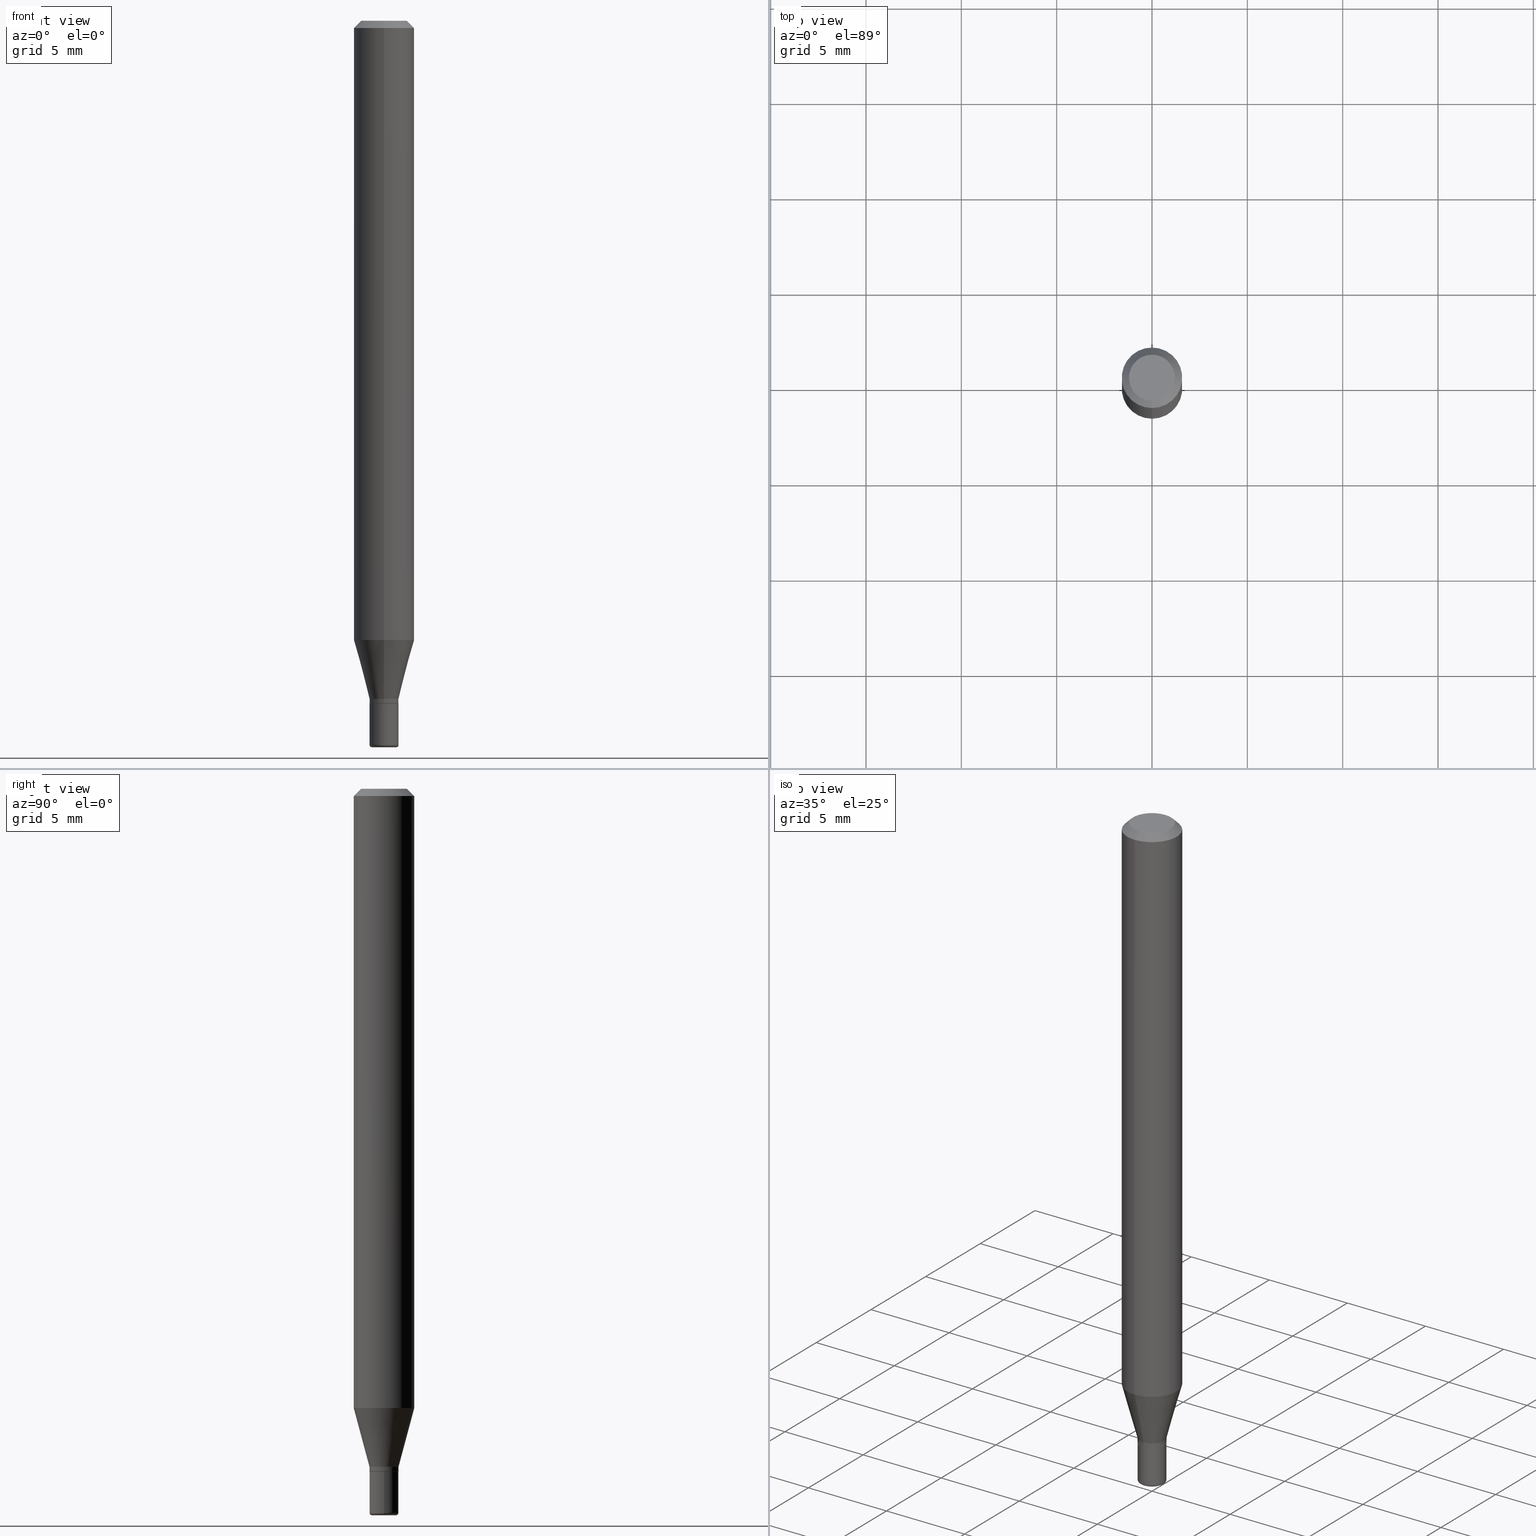
[diagram: canonical four-view strip — front | top / right | iso, engineering-drawing reading convention]
A machine part, canonical four-view strip (front | top / right | iso — engineering-drawing reading convention). The complete STEP part file that produces these views, byte-faithful:
ISO-10303-21;
HEADER;
FILE_DESCRIPTION (( 'STEP AP203' ),
    '1' );
FILE_NAME ('08533.STEP',
    '2024-02-29T19:43:01',
    ( '' ),
    ( '' ),
    'SwSTEP 2.0',
    'SolidWorks 2023',
    '' );
FILE_SCHEMA (( 'CONFIG_CONTROL_DESIGN' ));
ENDSEC;

DATA;
#1 = ORIENTED_EDGE ( 'NONE', *, *, #451, .F. ) ;
#2 = DIRECTION ( 'NONE',  ( 1.000000000000000000, -6.982962677686259611E-15, 4.883557194083110659E-29 ) ) ;
#3 = AXIS2_PLACEMENT_3D ( 'NONE', #428, #367, #492 ) ;
#4 = AXIS2_PLACEMENT_3D ( 'NONE', #474, #21, #155 ) ;
#5 = ADVANCED_FACE ( 'NONE', ( #287 ), #89, .T. ) ;
#6 = CARTESIAN_POINT ( 'NONE',  ( 3.127180537988016728E-29, -4.464387054030078647E-15, -1.278708348754012292 ) ) ;
#7 = CARTESIAN_POINT ( 'NONE',  ( 3.655975865246778562E-29, -5.219764601570502352E-15, -1.494999999999999662 ) ) ;
#8 = DIRECTION ( 'NONE',  ( 1.000000000000000000, -6.982962677686266711E-15, 4.876176775795935793E-29 ) ) ;
#9 = ORIENTED_EDGE ( 'NONE', *, *, #80, .T. ) ;
#10 = CIRCLE ( 'NONE', #477, 0.06250000000000000000 ) ;
#11 = EDGE_CURVE ( 'NONE', #268, #414, #246, .T. ) ;
#12 = EDGE_LOOP ( 'NONE', ( #171, #205 ) ) ;
#13 = DATE_TIME_ROLE ( 'classification_date' ) ;
#14 = VECTOR ( 'NONE', #488, 39.37007874015748143 ) ;
#15 = AXIS2_PLACEMENT_3D ( 'NONE', #32, #442, #362 ) ;
#16 = ADVANCED_FACE ( 'NONE', ( #209 ), #319, .T. ) ;
#17 = DIRECTION ( 'NONE',  ( -2.445577633895310376E-29, 3.491325491368088236E-15, 1.000000000000000000 ) ) ;
#18 = EDGE_LOOP ( 'NONE', ( #240, #394, #363, #406 ) ) ;
#19 = PERSON_AND_ORGANIZATION ( #228, #289 ) ;
#20 = CARTESIAN_POINT ( 'NONE',  ( -2.094888803305886127E-16, -0.03000000000000009256, 1.047397647410429799E-16 ) ) ;
#21 = DIRECTION ( 'NONE',  ( -2.445577633895310376E-29, 3.491325491368088236E-15, 1.000000000000000000 ) ) ;
#22 = AXIS2_PLACEMENT_3D ( 'NONE', #70, #157, #30 ) ;
#23 = LOCAL_TIME ( 14, 43, 1.000000000000000000, #291 ) ;
#24 = CARTESIAN_POINT ( 'NONE',  ( 0.02499999999999999792, -5.394338668512659809E-15, -1.495000000000000107 ) ) ;
#25 = EDGE_CURVE ( 'NONE', #323, #349, #244, .T. ) ;
#26 = LINE ( 'NONE', #162, #494 ) ;
#27 = DIRECTION ( 'NONE',  ( 1.000000000000000000, -6.982962677686255667E-15, 0.000000000000000000 ) ) ;
#28 = DIRECTION ( 'NONE',  ( -6.982962677686265133E-15, -1.000000000000000000, 3.491325491368088236E-15 ) ) ;
#29 = ORIENTED_EDGE ( 'NONE', *, *, #499, .F. ) ;
#30 = DIRECTION ( 'NONE',  ( -6.982962677686265922E-15, -1.000000000000000000, 3.491325491368088236E-15 ) ) ;
#31 = CONICAL_SURFACE ( 'NONE', #419, 0.03000000000000009950, 0.2617993877991495189 ) ;
#32 = CARTESIAN_POINT ( 'NONE',  ( 3.316907271900976589E-16, 0.04750000000000000749, -2.924926253430366371E-17 ) ) ;
#33 = ORIENTED_EDGE ( 'NONE', *, *, #408, .F. ) ;
#34 = ORIENTED_EDGE ( 'NONE', *, *, #251, .T. ) ;
#35 = CC_DESIGN_PERSON_AND_ORGANIZATION_ASSIGNMENT ( #146, #149, ( #404 ) ) ;
#36 = DIRECTION ( 'NONE',  ( -6.982962677686265922E-15, -1.000000000000000000, 0.000000000000000000 ) ) ;
#37 =( NAMED_UNIT ( * ) PLANE_ANGLE_UNIT ( ) SI_UNIT ( $, .RADIAN. ) );
#38 = DIRECTION ( 'NONE',  ( -2.445468806185136597E-29, 3.491481338843145583E-15, 1.000000000000000000 ) ) ;
#39 = CIRCLE ( 'NONE', #412, 0.02950000000000008865 ) ;
#40 = CIRCLE ( 'NONE', #47, 0.06250000000000000000 ) ;
#42 = ORIENTED_EDGE ( 'NONE', *, *, #238, .F. ) ;
#41 = PRODUCT_DEFINITION_FORMATION_WITH_SPECIFIED_SOURCE ( 'ANY', '', #329, .NOT_KNOWN. ) ;
#43 = CARTESIAN_POINT ( 'NONE',  ( 2.094888803306224597E-16, 0.02999999999999507921, -1.409999999999999920 ) ) ;
#44 = ADVANCED_FACE ( 'NONE', ( #487 ), #174, .F. ) ;
#45 = DIRECTION ( 'NONE',  ( -2.445577633895310376E-29, 3.491325491368088236E-15, 1.000000000000000000 ) ) ;
#46 = ORIENTED_EDGE ( 'NONE', *, *, #173, .T. ) ;
#47 = AXIS2_PLACEMENT_3D ( 'NONE', #191, #17, #348 ) ;
#48 = APPROVAL_DATE_TIME ( #373, #336 ) ;
#49 = CONICAL_SURFACE ( 'NONE', #122, 0.03000000000000009950, 0.2617993877991495189 ) ;
#50 = CARTESIAN_POINT ( 'NONE',  ( 2.096101070492646481E-16, 0.02949999999999516551, -1.409999999999999920 ) ) ;
#51 = AXIS2_PLACEMENT_3D ( 'NONE', #24, #54, #427 ) ;
#52 = DIRECTION ( 'NONE',  ( 1.000000000000000000, -6.982962677686265922E-15, 4.876176775795935793E-29 ) ) ;
#53 = APPROVAL_STATUS ( 'not_yet_approved' ) ;
#54 = DIRECTION ( 'NONE',  ( -6.982962677686266711E-15, -1.000000000000000000, 3.491481338843145583E-15 ) ) ;
#55 = CALENDAR_DATE ( 2024, 29, 2 ) ;
#56 = CARTESIAN_POINT ( 'NONE',  ( -0.02499999999999999792, -5.033094052583581751E-15, -1.500000000000000444 ) ) ;
#57 = ORIENTED_EDGE ( 'NONE', *, *, #262, .T. ) ;
#58 = DIRECTION ( 'NONE',  ( 6.982962677686265922E-15, 1.000000000000000000, -3.483106191921935554E-15 ) ) ;
#59 = AXIS2_PLACEMENT_3D ( 'NONE', #133, #282, #86 ) ;
#60 = EDGE_CURVE ( 'NONE', #508, #349, #276, .T. ) ;
#61 = CIRCLE ( 'NONE', #90, 0.02499999999999999792 ) ;
#62 = EDGE_CURVE ( 'NONE', #78, #166, #377, .T. ) ;
#63 = FACE_OUTER_BOUND ( 'NONE', #18, .T. ) ;
#64 = DIRECTION ( 'NONE',  ( -2.445577633895310376E-29, 3.491325491368088236E-15, 1.000000000000000000 ) ) ;
#65 = EDGE_LOOP ( 'NONE', ( #212, #429, #76, #164 ) ) ;
#66 = ADVANCED_FACE ( 'NONE', ( #452 ), #82, .F. ) ;
#67 = FACE_OUTER_BOUND ( 'NONE', #517, .T. ) ;
#68 = DIRECTION ( 'NONE',  ( -2.445468806185136597E-29, 3.491481338843145583E-15, 1.000000000000000000 ) ) ;
#69 = EDGE_LOOP ( 'NONE', ( #199, #46, #249, #1 ) ) ;
#70 = CARTESIAN_POINT ( 'NONE',  ( 0.000000000000000000, 0.000000000000000000, 0.000000000000000000 ) ) ;
#71 = FACE_OUTER_BOUND ( 'NONE', #258, .T. ) ;
#72 = ORIENTED_EDGE ( 'NONE', *, *, #326, .F. ) ;
#73 = AXIS2_PLACEMENT_3D ( 'NONE', #243, #120, #446 ) ;
#74 = APPROVAL_PERSON_ORGANIZATION ( #467, #336, #175 ) ;
#75 = DIRECTION ( 'NONE',  ( -2.445577633895310376E-29, 3.491325491368088236E-15, 1.000000000000000000 ) ) ;
#76 = ORIENTED_EDGE ( 'NONE', *, *, #408, .T. ) ;
#77 = DIRECTION ( 'NONE',  ( -2.445468806185136877E-29, 3.491481338843145188E-15, 1.000000000000000000 ) ) ;
#78 = VERTEX_POINT ( 'NONE', #210 ) ;
#79 = CARTESIAN_POINT ( 'NONE',  ( 0.000000000000000000, 0.000000000000000000, 0.000000000000000000 ) ) ;
#80 = EDGE_CURVE ( 'NONE', #480, #493, #344, .T. ) ;
#81 = ORIENTED_EDGE ( 'NONE', *, *, #178, .T. ) ;
#82 = PLANE ( 'NONE',  #296 ) ;
#83 = TOROIDAL_SURFACE ( 'NONE', #151, 0.02499999999999999792, 0.005000000000000179648 ) ;
#84 = VERTEX_POINT ( 'NONE', #98 ) ;
#85 = ORIENTED_EDGE ( 'NONE', *, *, #101, .T. ) ;
#86 = DIRECTION ( 'NONE',  ( 1.000000000000000000, -6.982962677686268288E-15, 0.000000000000000000 ) ) ;
#87 = ORIENTED_EDGE ( 'NONE', *, *, #468, .T. ) ;
#88 = EDGE_LOOP ( 'NONE', ( #108, #57, #136, #29 ) ) ;
#89 = CYLINDRICAL_SURFACE ( 'NONE', #353, 0.03000000000000008910 ) ;
#90 = AXIS2_PLACEMENT_3D ( 'NONE', #265, #68, #235 ) ;
#91 = APPROVAL_STATUS ( 'not_yet_approved' ) ;
#92 = CARTESIAN_POINT ( 'NONE',  ( 0.000000000000000000, 0.000000000000000000, 0.000000000000000000 ) ) ;
#93 = DATE_AND_TIME ( #382, #514 ) ;
#94 = AXIS2_PLACEMENT_3D ( 'NONE', #43, #410, #126 ) ;
#95 = VECTOR ( 'NONE', #77, 39.37007874015748143 ) ;
#96 = DIRECTION ( 'NONE',  ( -6.982962677686265922E-15, -1.000000000000000000, 0.000000000000000000 ) ) ;
#97 =( GEOMETRIC_REPRESENTATION_CONTEXT ( 3 ) GLOBAL_UNCERTAINTY_ASSIGNED_CONTEXT ( ( #401 ) ) GLOBAL_UNIT_ASSIGNED_CONTEXT ( ( #241, #37, #516 ) ) REPRESENTATION_CONTEXT ( 'NONE', 'WORKASPACE' ) );
#98 = CARTESIAN_POINT ( 'NONE',  ( 3.840629472727447874E-16, 0.04750000000000000749, 1.073394357713768884E-16 ) ) ;
#99 = MECHANICAL_CONTEXT ( 'NONE', #328, 'mechanical' ) ;
#100 = FACE_OUTER_BOUND ( 'NONE', #208, .T. ) ;
#101 = EDGE_CURVE ( 'NONE', #313, #176, #119, .T. ) ;
#102 = FACE_OUTER_BOUND ( 'NONE', #245, .T. ) ;
#103 = EDGE_LOOP ( 'NONE', ( #359, #335, #121, #72 ) ) ;
#104 = ADVANCED_FACE ( 'NONE', ( #470 ), #340, .F. ) ;
#105 = ORIENTED_EDGE ( 'NONE', *, *, #11, .T. ) ;
#106 = CARTESIAN_POINT ( 'NONE',  ( 3.668366450842892977E-31, -5.236988237052028199E-17, -0.01499999999999970281 ) ) ;
#107 = AXIS2_PLACEMENT_3D ( 'NONE', #237, #163, #407 ) ;
#108 = ORIENTED_EDGE ( 'NONE', *, *, #130, .T. ) ;
#109 = CC_DESIGN_APPROVAL ( #388, ( #305 ) ) ;
#110 = CARTESIAN_POINT ( 'NONE',  ( 0.000000000000000000, 0.000000000000000000, 0.000000000000000000 ) ) ;
#111 = CARTESIAN_POINT ( 'NONE',  ( 4.364351673553919652E-16, 0.06249999999999995143, -0.01499999999999992138 ) ) ;
#112 = DIRECTION ( 'NONE',  ( -6.982962677686265922E-15, -1.000000000000000000, 0.000000000000000000 ) ) ;
#113 = ORIENTED_EDGE ( 'NONE', *, *, #62, .F. ) ;
#114 = EDGE_CURVE ( 'NONE', #236, #78, #458, .T. ) ;
#115 = CYLINDRICAL_SURFACE ( 'NONE', #22, 0.06250000000000000000 ) ;
#116 = CARTESIAN_POINT ( 'NONE',  ( 3.448111016721042669E-29, -4.922988687768835701E-15, -1.409999999999999920 ) ) ;
#117 = EDGE_LOOP ( 'NONE', ( #128, #34, #271, #232 ) ) ;
#118 = DIRECTION ( 'NONE',  ( -6.982962677686265922E-15, -1.000000000000000000, 0.000000000000000000 ) ) ;
#119 = CIRCLE ( 'NONE', #250, 0.03000000000000008910 ) ;
#120 = DIRECTION ( 'NONE',  ( -2.445577633895310376E-29, 3.491325491368088236E-15, 1.000000000000000000 ) ) ;
#121 = ORIENTED_EDGE ( 'NONE', *, *, #153, .F. ) ;
#122 = AXIS2_PLACEMENT_3D ( 'NONE', #464, #225, #229 ) ;
#123 = DIRECTION ( 'NONE',  ( 1.000000000000000000, -6.982962677686268288E-15, 0.000000000000000000 ) ) ;
#124 = EDGE_CURVE ( 'NONE', #495, #457, #288, .T. ) ;
#125 = EDGE_LOOP ( 'NONE', ( #87, #472 ) ) ;
#126 = DIRECTION ( 'NONE',  ( -1.000000000000000000, 6.982962677686265922E-15, -4.876176775795935793E-29 ) ) ;
#127 = EDGE_CURVE ( 'NONE', #414, #349, #141, .T. ) ;
#128 = ORIENTED_EDGE ( 'NONE', *, *, #217, .F. ) ;
#129 = DIRECTION ( 'NONE',  ( 1.000000000000000000, -6.982962677686259611E-15, 0.000000000000000000 ) ) ;
#130 = EDGE_CURVE ( 'NONE', #493, #480, #39, .T. ) ;
#131 = ORIENTED_EDGE ( 'NONE', *, *, #80, .F. ) ;
#132 = AXIS2_PLACEMENT_3D ( 'NONE', #110, #197, #355 ) ;
#133 = CARTESIAN_POINT ( 'NONE',  ( 3.448111016721042669E-29, -4.922988687768835701E-15, -1.409999999999999920 ) ) ;
#134 = APPROVAL_PERSON_ORGANIZATION ( #142, #399, #426 ) ;
#135 = SHAPE_DEFINITION_REPRESENTATION ( #215, #140 ) ;
#136 = ORIENTED_EDGE ( 'NONE', *, *, #101, .F. ) ;
#137 = ORIENTED_EDGE ( 'NONE', *, *, #127, .T. ) ;
#138 = COORDINATED_UNIVERSAL_TIME_OFFSET ( 5, 0, .BEHIND. ) ;
#139 = CC_DESIGN_PERSON_AND_ORGANIZATION_ASSIGNMENT ( #497, #501, ( #329 ) ) ;
#140 = ADVANCED_BREP_SHAPE_REPRESENTATION ( '08533', ( #334, #179, #299 ), #97 ) ;
#141 = CIRCLE ( 'NONE', #432, 0.06250000000000000000 ) ;
#142 = PERSON_AND_ORGANIZATION ( #228, #289 ) ;
#143 = CIRCLE ( 'NONE', #354, 0.03000000000000017583 ) ;
#144 = APPROVAL_ROLE ( '' ) ;
#145 = ADVANCED_FACE ( 'NONE', ( #67 ), #180, .T. ) ;
#146 = PERSON_AND_ORGANIZATION ( #228, #289 ) ;
#147 = DIRECTION ( 'NONE',  ( -2.445577633895310376E-29, 3.491325491368088236E-15, 1.000000000000000000 ) ) ;
#148 = DIRECTION ( 'NONE',  ( -2.445577633895310376E-29, 3.491325491368088236E-15, 1.000000000000000000 ) ) ;
#149 = PERSON_AND_ORGANIZATION_ROLE ( 'classification_officer' ) ;
#150 = AXIS2_PLACEMENT_3D ( 'NONE', #7, #172, #129 ) ;
#151 = AXIS2_PLACEMENT_3D ( 'NONE', #364, #361, #2 ) ;
#152 = DIRECTION ( 'NONE',  ( -1.807323732225324617E-15, -0.2588190451025174088, 0.9659258262890690894 ) ) ;
#153 = EDGE_CURVE ( 'NONE', #166, #78, #143, .T. ) ;
#154 = CARTESIAN_POINT ( 'NONE',  ( -2.094888803305543958E-16, -0.03000000000000498449, -1.400000000000000355 ) ) ;
#155 = DIRECTION ( 'NONE',  ( -6.982962677686265922E-15, -1.000000000000000000, 3.491325491368088630E-15 ) ) ;
#156 = ORIENTED_EDGE ( 'NONE', *, *, #130, .F. ) ;
#157 = DIRECTION ( 'NONE',  ( -2.445577633895310376E-29, 3.491325491368088236E-15, 1.000000000000000000 ) ) ;
#158 = FACE_OUTER_BOUND ( 'NONE', #440, .T. ) ;
#159 = CONICAL_SURFACE ( 'NONE', #338, 0.02950000000000008865, 0.7853981633975507526 ) ;
#160 = ORIENTED_EDGE ( 'NONE', *, *, #451, .T. ) ;
#161 = CC_DESIGN_SECURITY_CLASSIFICATION ( #404, ( #41 ) ) ;
#162 = CARTESIAN_POINT ( 'NONE',  ( -0.03000000000000008910, 2.131628207280306888E-16, -1.475680527076476261E-30 ) ) ;
#163 = DIRECTION ( 'NONE',  ( -2.445577633895310376E-29, 3.491325491368088236E-15, 1.000000000000000000 ) ) ;
#164 = ORIENTED_EDGE ( 'NONE', *, *, #450, .F. ) ;
#165 = DIRECTION ( 'NONE',  ( -4.937700262165053702E-15, -0.7071067811866175168, 0.7071067811864775177 ) ) ;
#166 = VERTEX_POINT ( 'NONE', #478 ) ;
#167 = DIRECTION ( 'NONE',  ( -2.445577633895310376E-29, 3.491325491368088236E-15, 1.000000000000000000 ) ) ;
#168 = ADVANCED_FACE ( 'NONE', ( #63 ), #115, .T. ) ;
#169 = DIRECTION ( 'NONE',  ( -6.982962677686265922E-15, -1.000000000000000000, 4.370956789862821150E-15 ) ) ;
#170 = ADVANCED_FACE ( 'NONE', ( #392 ), #396, .T. ) ;
#171 = ORIENTED_EDGE ( 'NONE', *, *, #204, .T. ) ;
#172 = DIRECTION ( 'NONE',  ( -2.445468806185136597E-29, 3.491481338843145583E-15, 1.000000000000000000 ) ) ;
#173 = EDGE_CURVE ( 'NONE', #78, #495, #26, .T. ) ;
#174 = PLANE ( 'NONE',  #94 ) ;
#175 = APPROVAL_ROLE ( '' ) ;
#176 = VERTEX_POINT ( 'NONE', #193 ) ;
#177 = CONICAL_SURFACE ( 'NONE', #318, 0.06250000000000000000, 0.7853981633974488341 ) ;
#178 = EDGE_CURVE ( 'NONE', #236, #196, #297, .T. ) ;
#179 = MANIFOLD_SOLID_BREP ( 'Body-Move/Copy2[2]', #331 ) ;
#180 = TOROIDAL_SURFACE ( 'NONE', #476, 0.02499999999999999792, 0.005000000000000179648 ) ;
#181 = EDGE_CURVE ( 'NONE', #84, #414, #510, .T. ) ;
#182 = DATE_AND_TIME ( #374, #433 ) ;
#183 = CIRCLE ( 'NONE', #403, 0.02999999999999999889 ) ;
#184 = APPROVAL_DATE_TIME ( #222, #399 ) ;
#185 = CARTESIAN_POINT ( 'NONE',  ( -4.364351673553912750E-16, -0.06250000000000005551, -0.01499999999999948597 ) ) ;
#186 = APPLICATION_PROTOCOL_DEFINITION ( 'international standard', 'config_control_design', 1994, #284 ) ;
#187 = DIRECTION ( 'NONE',  ( 5.024295867788576727E-15, 0.7071067811866224018, 0.7071067811864726327 ) ) ;
#188 = CIRCLE ( 'NONE', #372, 0.04750000000000000749 ) ;
#189 = CYLINDRICAL_SURFACE ( 'NONE', #4, 0.03000000000000009256 ) ;
#190 = LOCAL_TIME ( 14, 43, 1.000000000000000000, #138 ) ;
#191 = CARTESIAN_POINT ( 'NONE',  ( 3.668366450842892977E-31, -5.236988237052028199E-17, -0.01499999999999970281 ) ) ;
#192 = ORIENTED_EDGE ( 'NONE', *, *, #181, .F. ) ;
#193 = CARTESIAN_POINT ( 'NONE',  ( 2.131628207280643880E-16, 0.02999999999999506534, -1.409500000000000197 ) ) ;
#194 = DIRECTION ( 'NONE',  ( -2.445577633895310376E-29, 3.491325491368088236E-15, 1.000000000000000000 ) ) ;
#195 = CC_DESIGN_PERSON_AND_ORGANIZATION_ASSIGNMENT ( #252, #503, ( #41 ) ) ;
#196 = VERTEX_POINT ( 'NONE', #309 ) ;
#197 = DIRECTION ( 'NONE',  ( -2.445577633895310376E-29, 3.491325491368088236E-15, 1.000000000000000000 ) ) ;
#198 = CARTESIAN_POINT ( 'NONE',  ( 0.02999999999999999889, -5.132477568099423229E-15, -1.409999999999999920 ) ) ;
#199 = ORIENTED_EDGE ( 'NONE', *, *, #153, .T. ) ;
#200 = DESIGN_CONTEXT ( 'detailed design', #284, 'design' ) ;
#201 = FACE_OUTER_BOUND ( 'NONE', #88, .T. ) ;
#202 = CARTESIAN_POINT ( 'NONE',  ( -2.059973989917109696E-16, -0.02950000000000500833, -1.409999999999999920 ) ) ;
#203 = EDGE_CURVE ( 'NONE', #196, #236, #61, .T. ) ;
#204 = EDGE_CURVE ( 'NONE', #84, #323, #423, .T. ) ;
#205 = ORIENTED_EDGE ( 'NONE', *, *, #233, .T. ) ;
#206 = CARTESIAN_POINT ( 'NONE',  ( 4.440892098500625669E-16, 0.06250000000000000000, -2.182078432105055147E-16 ) ) ;
#207 = AXIS2_PLACEMENT_3D ( 'NONE', #6, #75, #169 ) ;
#208 = EDGE_LOOP ( 'NONE', ( #85, #417, #42, #483 ) ) ;
#209 = FACE_OUTER_BOUND ( 'NONE', #69, .T. ) ;
#210 = CARTESIAN_POINT ( 'NONE',  ( -0.03000000000000017583, -4.858213823941637204E-15, -1.494999999999999662 ) ) ;
#211 = ADVANCED_FACE ( 'NONE', ( #322 ), #83, .T. ) ;
#212 = ORIENTED_EDGE ( 'NONE', *, *, #303, .F. ) ;
#213 = EDGE_LOOP ( 'NONE', ( #263, #226, #279, #33 ) ) ;
#214 = ORIENTED_EDGE ( 'NONE', *, *, #60, .F. ) ;
#215 = PRODUCT_DEFINITION_SHAPE ( 'NONE', 'NONE',  #305 ) ;
#216 = AXIS2_PLACEMENT_3D ( 'NONE', #479, #147, #112 ) ;
#217 = EDGE_CURVE ( 'NONE', #176, #242, #409, .T. ) ;
#218 = COORDINATED_UNIVERSAL_TIME_OFFSET ( 5, 0, .BEHIND. ) ;
#219 = DIRECTION ( 'NONE',  ( -6.982962677686265922E-15, -1.000000000000000000, 3.491325491368088236E-15 ) ) ;
#220 = PERSON_AND_ORGANIZATION_ROLE ( 'creator' ) ;
#221 = DIRECTION ( 'NONE',  ( -2.445577633895310376E-29, 3.491325491368088236E-15, 1.000000000000000000 ) ) ;
#222 = DATE_AND_TIME ( #380, #23 ) ;
#223 = DIRECTION ( 'NONE',  ( -2.445577633895310376E-29, 3.491325491368088236E-15, 1.000000000000000000 ) ) ;
#224 = DATE_TIME_ROLE ( 'creation_date' ) ;
#225 = DIRECTION ( 'NONE',  ( -2.445577633895310376E-29, 3.491325491368088236E-15, 1.000000000000000000 ) ) ;
#226 = ORIENTED_EDGE ( 'NONE', *, *, #303, .T. ) ;
#227 = CONICAL_SURFACE ( 'NONE', #259, 0.06250000000000000000, 0.7853981633974488341 ) ;
#228 = PERSON ( 'UNSPECIFIED', 'UNSPECIFIED', 'UNSPECIFIED', ('UNSPECIFIED'), ('UNSPECIFIED'), ('UNSPECIFIED') ) ;
#229 = DIRECTION ( 'NONE',  ( -6.982962677686265922E-15, -1.000000000000000000, 0.000000000000000000 ) ) ;
#230 = ORIENTED_EDGE ( 'NONE', *, *, #62, .T. ) ;
#231 = FACE_OUTER_BOUND ( 'NONE', #65, .T. ) ;
#232 = ORIENTED_EDGE ( 'NONE', *, *, #366, .F. ) ;
#233 = EDGE_CURVE ( 'NONE', #323, #84, #188, .T. ) ;
#234 = CARTESIAN_POINT ( 'NONE',  ( 3.655975865246778562E-29, -5.219764601570502352E-15, -1.494999999999999662 ) ) ;
#235 = DIRECTION ( 'NONE',  ( 1.000000000000000000, -6.982962677686255667E-15, 0.000000000000000000 ) ) ;
#236 = VERTEX_POINT ( 'NONE', #56 ) ;
#237 = CARTESIAN_POINT ( 'NONE',  ( 0.000000000000000000, 0.000000000000000000, 0.000000000000000000 ) ) ;
#238 = EDGE_CURVE ( 'NONE', #316, #242, #513, .T. ) ;
#239 = FACE_OUTER_BOUND ( 'NONE', #12, .T. ) ;
#240 = ORIENTED_EDGE ( 'NONE', *, *, #11, .F. ) ;
#241 =( CONVERSION_BASED_UNIT ( 'INCH', #448 ) LENGTH_UNIT ( ) NAMED_UNIT ( #267 ) );
#242 = VERTEX_POINT ( 'NONE', #389 ) ;
#243 = CARTESIAN_POINT ( 'NONE',  ( -6.680765312384932714E-45, 9.537512084548153961E-31, 2.731773966113611166E-16 ) ) ;
#244 = LINE ( 'NONE', #415, #371 ) ;
#245 = EDGE_LOOP ( 'NONE', ( #332, #301, #439, #137 ) ) ;
#246 = LINE ( 'NONE', #206, #272 ) ;
#247 = VECTOR ( 'NONE', #165, 39.37007874015748143 ) ;
#248 = CARTESIAN_POINT ( 'NONE',  ( 3.668366450842892977E-31, -5.236988237052028199E-17, -0.01499999999999970281 ) ) ;
#249 = ORIENTED_EDGE ( 'NONE', *, *, #468, .F. ) ;
#250 = AXIS2_PLACEMENT_3D ( 'NONE', #384, #295, #465 ) ;
#251 = EDGE_CURVE ( 'NONE', #176, #313, #505, .T. ) ;
#252 = PERSON_AND_ORGANIZATION ( #228, #289 ) ;
#253 = DIRECTION ( 'NONE',  ( 0.000000000000000000, 0.000000000000000000, 1.000000000000000000 ) ) ;
#254 = VECTOR ( 'NONE', #302, 39.37007874015748854 ) ;
#255 = DIRECTION ( 'NONE',  ( -2.445577633895310376E-29, 3.491325491368088236E-15, 1.000000000000000000 ) ) ;
#256 = CARTESIAN_POINT ( 'NONE',  ( 4.440892098500935790E-16, 0.06249999999999550360, -1.278708348754012514 ) ) ;
#257 = FACE_OUTER_BOUND ( 'NONE', #333, .T. ) ;
#258 = EDGE_LOOP ( 'NONE', ( #327, #105, #418, #214 ) ) ;
#259 = AXIS2_PLACEMENT_3D ( 'NONE', #471, #506, #58 ) ;
#260 = CARTESIAN_POINT ( 'NONE',  ( 3.448264463792387642E-29, -4.922768942829004609E-15, -1.409999999999999920 ) ) ;
#261 = APPROVAL_PERSON_ORGANIZATION ( #19, #388, #144 ) ;
#262 = EDGE_CURVE ( 'NONE', #480, #176, #294, .T. ) ;
#263 = ORIENTED_EDGE ( 'NONE', *, *, #238, .T. ) ;
#264 = CARTESIAN_POINT ( 'NONE',  ( 3.448264463792387642E-29, -4.922768942829004609E-15, -1.409999999999999920 ) ) ;
#265 = CARTESIAN_POINT ( 'NONE',  ( 3.668203209277706016E-29, -5.237222008264719754E-15, -1.500000000000000444 ) ) ;
#266 = DIRECTION ( 'NONE',  ( -2.445577633895310376E-29, 3.491325491368088236E-15, 1.000000000000000000 ) ) ;
#267 = DIMENSIONAL_EXPONENTS ( 1.000000000000000000, 0.000000000000000000, 0.000000000000000000, 0.000000000000000000, 0.000000000000000000, 0.000000000000000000, 0.000000000000000000 ) ;
#268 = VERTEX_POINT ( 'NONE', #256 ) ;
#269 = DIRECTION ( 'NONE',  ( 1.000000000000000000, -6.982962677686259611E-15, 4.883557194083110659E-29 ) ) ;
#270 = DIRECTION ( 'NONE',  ( -2.445468806185136597E-29, 3.491481338843145583E-15, 1.000000000000000000 ) ) ;
#271 = ORIENTED_EDGE ( 'NONE', *, *, #395, .T. ) ;
#272 = VECTOR ( 'NONE', #167, 39.37007874015748143 ) ;
#273 = PLANE ( 'NONE',  #15 ) ;
#274 = CIRCLE ( 'NONE', #51, 0.005000000000000177046 ) ;
#275 = CARTESIAN_POINT ( 'NONE',  ( 3.127180537988016728E-29, -4.464387054030078647E-15, -1.278708348754012292 ) ) ;
#276 = LINE ( 'NONE', #324, #14 ) ;
#277 = DIRECTION ( 'NONE',  ( -2.445468806185136597E-29, 3.491481338843145583E-15, 1.000000000000000000 ) ) ;
#278 = CC_DESIGN_DATE_AND_TIME_ASSIGNMENT ( #182, #13, ( #404 ) ) ;
#279 = ORIENTED_EDGE ( 'NONE', *, *, #496, .F. ) ;
#280 = AXIS2_PLACEMENT_3D ( 'NONE', #456, #148, #376 ) ;
#281 = CC_DESIGN_APPROVAL ( #336, ( #404 ) ) ;
#282 = DIRECTION ( 'NONE',  ( -2.445468806185136597E-29, 3.491481338843145583E-15, 1.000000000000000000 ) ) ;
#283 = EDGE_LOOP ( 'NONE', ( #156, #131 ) ) ;
#284 = APPLICATION_CONTEXT ( 'configuration controlled 3d designs of mechanical parts and assemblies' ) ;
#285 = ORIENTED_EDGE ( 'NONE', *, *, #173, .F. ) ;
#286 = ADVANCED_FACE ( 'NONE', ( #158 ), #177, .T. ) ;
#287 = FACE_OUTER_BOUND ( 'NONE', #475, .T. ) ;
#288 = CIRCLE ( 'NONE', #59, 0.02999999999999999889 ) ;
#289 = ORGANIZATION ( 'UNSPECIFIED', 'UNSPECIFIED', '' ) ;
#290 = ORIENTED_EDGE ( 'NONE', *, *, #124, .F. ) ;
#291 = COORDINATED_UNIVERSAL_TIME_OFFSET ( 5, 0, .BEHIND. ) ;
#292 = PERSON_AND_ORGANIZATION ( #228, #289 ) ;
#293 = APPROVAL_STATUS ( 'not_yet_approved' ) ;
#294 = LINE ( 'NONE', #50, #356 ) ;
#295 = DIRECTION ( 'NONE',  ( -2.445577633895310376E-29, 3.491325491368088236E-15, 1.000000000000000000 ) ) ;
#296 = AXIS2_PLACEMENT_3D ( 'NONE', #330, #314, #219 ) ;
#297 = CIRCLE ( 'NONE', #308, 0.02499999999999999792 ) ;
#298 = COORDINATED_UNIVERSAL_TIME_OFFSET ( 5, 0, .BEHIND. ) ;
#299 = AXIS2_PLACEMENT_3D ( 'NONE', #92, #253, #420 ) ;
#300 = CARTESIAN_POINT ( 'NONE',  ( 2.131628207280649550E-16, 0.02999999999999521105, -1.400000000000000355 ) ) ;
#301 = ORIENTED_EDGE ( 'NONE', *, *, #204, .F. ) ;
#302 = DIRECTION ( 'NONE',  ( 1.839019923739594793E-15, 0.2588190451025241812, 0.9659258262890673130 ) ) ;
#303 = EDGE_CURVE ( 'NONE', #242, #268, #430, .T. ) ;
#304 = DIRECTION ( 'NONE',  ( -2.445577633895310376E-29, 3.491325491368088236E-15, 1.000000000000000000 ) ) ;
#305 = PRODUCT_DEFINITION ( 'UNKNOWN', '', #41, #200 ) ;
#306 = AXIS2_PLACEMENT_3D ( 'NONE', #79, #38, #8 ) ;
#307 = DIRECTION ( 'NONE',  ( -6.982962677686265922E-15, -1.000000000000000000, 0.000000000000000000 ) ) ;
#308 = AXIS2_PLACEMENT_3D ( 'NONE', #437, #397, #27 ) ;
#309 = CARTESIAN_POINT ( 'NONE',  ( 0.02499999999999999792, -5.411796075206875633E-15, -1.500000000000000444 ) ) ;
#310 = DIRECTION ( 'NONE',  ( -6.982962677686266711E-15, -1.000000000000000000, 0.000000000000000000 ) ) ;
#311 = DIRECTION ( 'NONE',  ( -2.445468806185136877E-29, 3.491481338843145188E-15, 1.000000000000000000 ) ) ;
#312 = CARTESIAN_POINT ( 'NONE',  ( 0.03000000000000008910, -2.094888803305886127E-16, 1.462853032738785082E-30 ) ) ;
#313 = VERTEX_POINT ( 'NONE', #469 ) ;
#314 = DIRECTION ( 'NONE',  ( -2.445577633895310096E-29, 3.491325491368088236E-15, 1.000000000000000000 ) ) ;
#315 = CARTESIAN_POINT ( 'NONE',  ( -4.364351673553605094E-16, -0.06250000000000449640, -1.278708348754012070 ) ) ;
#316 = VERTEX_POINT ( 'NONE', #511 ) ;
#317 = AXIS2_PLACEMENT_3D ( 'NONE', #416, #422, #52 ) ;
#318 = AXIS2_PLACEMENT_3D ( 'NONE', #106, #425, #342 ) ;
#319 = CYLINDRICAL_SURFACE ( 'NONE', #306, 0.03000000000000008910 ) ;
#320 = CARTESIAN_POINT ( 'NONE',  ( -2.059973989917109696E-16, -0.02950000000000500833, -1.409999999999999920 ) ) ;
#321 = CC_DESIGN_PERSON_AND_ORGANIZATION_ASSIGNMENT ( #460, #500, ( #41 ) ) ;
#322 = FACE_OUTER_BOUND ( 'NONE', #103, .T. ) ;
#323 = VERTEX_POINT ( 'NONE', #381 ) ;
#324 = CARTESIAN_POINT ( 'NONE',  ( -4.364351673553916201E-16, -0.06250000000000000000, 2.182078432105055147E-16 ) ) ;
#325 = CALENDAR_DATE ( 2024, 29, 2 ) ;
#326 = EDGE_CURVE ( 'NONE', #196, #166, #274, .T. ) ;
#327 = ORIENTED_EDGE ( 'NONE', *, *, #496, .T. ) ;
#328 = APPLICATION_CONTEXT ( 'configuration controlled 3d designs of mechanical parts and assemblies' ) ;
#329 = PRODUCT ( '08533', '08533', '', ( #99 ) ) ;
#330 = CARTESIAN_POINT ( 'NONE',  ( 3.448264463792387642E-29, -4.922768942829004609E-15, -1.409999999999999920 ) ) ;
#331 = CLOSED_SHELL ( 'NONE', ( #411, #462, #286, #461, #391, #386, #168, #421, #455, #66, #447, #170 ) ) ;
#332 = ORIENTED_EDGE ( 'NONE', *, *, #25, .F. ) ;
#333 = EDGE_LOOP ( 'NONE', ( #400, #9, #473, #369 ) ) ;
#334 = MANIFOLD_SOLID_BREP ( 'Body-Move/Copy2[1]', #402 ) ;
#335 = ORIENTED_EDGE ( 'NONE', *, *, #114, .T. ) ;
#336 = APPROVAL ( #293, 'UNSPECIFIED' ) ;
#337 = APPROVAL_DATE_TIME ( #93, #388 ) ;
#338 = AXIS2_PLACEMENT_3D ( 'NONE', #260, #64, #118 ) ;
#339 = APPLICATION_PROTOCOL_DEFINITION ( 'international standard', 'config_control_design', 1994, #328 ) ;
#340 = PLANE ( 'NONE',  #317 ) ;
#341 = SECURITY_CLASSIFICATION_LEVEL ( 'unclassified' ) ;
#342 = DIRECTION ( 'NONE',  ( 6.982962677686265922E-15, 1.000000000000000000, -3.483106191921935554E-15 ) ) ;
#343 = CARTESIAN_POINT ( 'NONE',  ( 3.423808687453435536E-29, -4.887855687915325108E-15, -1.400000000000000355 ) ) ;
#344 = CIRCLE ( 'NONE', #280, 0.02950000000000008865 ) ;
#345 = AXIS2_PLACEMENT_3D ( 'NONE', #351, #266, #310 ) ;
#346 = CARTESIAN_POINT ( 'NONE',  ( 4.440892098500940720E-16, 0.06249999999999995143, -0.01499999999999992138 ) ) ;
#347 = EDGE_CURVE ( 'NONE', #349, #414, #40, .T. ) ;
#348 = DIRECTION ( 'NONE',  ( -6.982962677686265922E-15, -1.000000000000000000, 3.483106191921935554E-15 ) ) ;
#349 = VERTEX_POINT ( 'NONE', #185 ) ;
#350 = DIRECTION ( 'NONE',  ( 4.937700262164550409E-15, 0.7071067811865454633, -0.7071067811865495711 ) ) ;
#351 = CARTESIAN_POINT ( 'NONE',  ( 3.447041674975439981E-29, -4.921023280083320910E-15, -1.409500000000000197 ) ) ;
#352 = ORIENTED_EDGE ( 'NONE', *, *, #114, .F. ) ;
#353 = AXIS2_PLACEMENT_3D ( 'NONE', #368, #277, #449 ) ;
#354 = AXIS2_PLACEMENT_3D ( 'NONE', #234, #441, #509 ) ;
#355 = DIRECTION ( 'NONE',  ( -6.982962677686265922E-15, -1.000000000000000000, 3.491325491368088630E-15 ) ) ;
#356 = VECTOR ( 'NONE', #187, 39.37007874015748143 ) ;
#357 = LINE ( 'NONE', #320, #247 ) ;
#358 = CARTESIAN_POINT ( 'NONE',  ( 3.448264463792387642E-29, -4.922768942829004609E-15, -1.409999999999999920 ) ) ;
#359 = ORIENTED_EDGE ( 'NONE', *, *, #203, .T. ) ;
#360 = CARTESIAN_POINT ( 'NONE',  ( -0.02999999999999999889, -4.858213823941637993E-15, -1.409999999999999920 ) ) ;
#361 = DIRECTION ( 'NONE',  ( -2.445468806185136597E-29, 3.491481338843145583E-15, 1.000000000000000000 ) ) ;
#362 = DIRECTION ( 'NONE',  ( 6.982962677686265922E-15, 1.000000000000000000, -3.491325491368088236E-15 ) ) ;
#363 = ORIENTED_EDGE ( 'NONE', *, *, #60, .T. ) ;
#364 = CARTESIAN_POINT ( 'NONE',  ( 3.655975865246779122E-29, -5.219764601570503141E-15, -1.495000000000000107 ) ) ;
#365 = DIRECTION ( 'NONE',  ( -4.851104656540966641E-15, -0.7071067811865503483, -0.7071067811865446862 ) ) ;
#366 = EDGE_CURVE ( 'NONE', #242, #316, #498, .T. ) ;
#367 = DIRECTION ( 'NONE',  ( 7.105427357601001859E-15, 1.000000000000000000, -3.491481338843145583E-15 ) ) ;
#368 = CARTESIAN_POINT ( 'NONE',  ( 0.000000000000000000, 0.000000000000000000, 0.000000000000000000 ) ) ;
#369 = ORIENTED_EDGE ( 'NONE', *, *, #251, .F. ) ;
#370 = DIRECTION ( 'NONE',  ( -6.982962677686265922E-15, -1.000000000000000000, 3.483106191921935554E-15 ) ) ;
#371 = VECTOR ( 'NONE', #365, 39.37007874015748143 ) ;
#372 = AXIS2_PLACEMENT_3D ( 'NONE', #507, #221, #28 ) ;
#373 = DATE_AND_TIME ( #325, #190 ) ;
#374 = CALENDAR_DATE ( 2024, 29, 2 ) ;
#375 = CC_DESIGN_DATE_AND_TIME_ASSIGNMENT ( #463, #224, ( #305 ) ) ;
#376 = DIRECTION ( 'NONE',  ( -6.982962677686265922E-15, -1.000000000000000000, 0.000000000000000000 ) ) ;
#377 = CIRCLE ( 'NONE', #150, 0.03000000000000017583 ) ;
#378 = AXIS2_PLACEMENT_3D ( 'NONE', #343, #223, #502 ) ;
#379 = CC_DESIGN_APPROVAL ( #399, ( #41 ) ) ;
#380 = CALENDAR_DATE ( 2024, 29, 2 ) ;
#381 = CARTESIAN_POINT ( 'NONE',  ( -3.773273898774340269E-16, -0.04750000000000000749, 4.390153574513453078E-16 ) ) ;
#382 = CALENDAR_DATE ( 2024, 29, 2 ) ;
#383 = FACE_OUTER_BOUND ( 'NONE', #213, .T. ) ;
#384 = CARTESIAN_POINT ( 'NONE',  ( 3.447041674975439981E-29, -4.921023280083320910E-15, -1.409500000000000197 ) ) ;
#385 = LINE ( 'NONE', #20, #459 ) ;
#386 = ADVANCED_FACE ( 'NONE', ( #231 ), #49, .T. ) ;
#387 = VECTOR ( 'NONE', #350, 39.37007874015748143 ) ;
#388 = APPROVAL ( #91, 'UNSPECIFIED' ) ;
#389 = CARTESIAN_POINT ( 'NONE',  ( 3.286260152890794642E-16, 0.02999999999999521105, -1.400000000000000355 ) ) ;
#390 = EDGE_LOOP ( 'NONE', ( #454, #490 ) ) ;
#391 = ADVANCED_FACE ( 'NONE', ( #383 ), #31, .T. ) ;
#392 = FACE_OUTER_BOUND ( 'NONE', #117, .T. ) ;
#393 = CARTESIAN_POINT ( 'NONE',  ( 3.423808687453435536E-29, -4.887855687915325108E-15, -1.400000000000000355 ) ) ;
#394 = ORIENTED_EDGE ( 'NONE', *, *, #450, .T. ) ;
#395 = EDGE_CURVE ( 'NONE', #313, #316, #385, .T. ) ;
#396 = CYLINDRICAL_SURFACE ( 'NONE', #132, 0.03000000000000009256 ) ;
#397 = DIRECTION ( 'NONE',  ( -2.445468806185136597E-29, 3.491481338843145583E-15, 1.000000000000000000 ) ) ;
#398 = DIRECTION ( 'NONE',  ( -6.982962677686265922E-15, -1.000000000000000000, 4.370956789862821150E-15 ) ) ;
#399 = APPROVAL ( #53, 'UNSPECIFIED' ) ;
#400 = ORIENTED_EDGE ( 'NONE', *, *, #262, .F. ) ;
#401 = UNCERTAINTY_MEASURE_WITH_UNIT (LENGTH_MEASURE( 1.000000000000000082E-05 ), #241, 'distance_accuracy_value', 'NONE');
#402 = CLOSED_SHELL ( 'NONE', ( #211, #16, #44, #5, #145, #104 ) ) ;
#403 = AXIS2_PLACEMENT_3D ( 'NONE', #116, #270, #123 ) ;
#404 = SECURITY_CLASSIFICATION ( '', '', #341 ) ;
#405 = LINE ( 'NONE', #312, #95 ) ;
#406 = ORIENTED_EDGE ( 'NONE', *, *, #127, .F. ) ;
#407 = DIRECTION ( 'NONE',  ( -6.982962677686265922E-15, -1.000000000000000000, 3.491325491368088236E-15 ) ) ;
#408 = EDGE_CURVE ( 'NONE', #316, #508, #504, .T. ) ;
#409 = LINE ( 'NONE', #434, #444 ) ;
#410 = DIRECTION ( 'NONE',  ( 2.438088387897960049E-29, -3.491481338843145188E-15, -1.000000000000000000 ) ) ;
#411 = ADVANCED_FACE ( 'NONE', ( #100 ), #189, .T. ) ;
#412 = AXIS2_PLACEMENT_3D ( 'NONE', #264, #435, #307 ) ;
#413 = CONICAL_SURFACE ( 'NONE', #466, 0.02950000000000008865, 0.7853981633975507526 ) ;
#414 = VERTEX_POINT ( 'NONE', #346 ) ;
#415 = CARTESIAN_POINT ( 'NONE',  ( -4.287811248607203282E-16, -0.06250000000000005551, -0.01499999999999948597 ) ) ;
#416 = CARTESIAN_POINT ( 'NONE',  ( 3.582686580359767159E-29, -5.359686688179454114E-15, -1.500000000000000444 ) ) ;
#417 = ORIENTED_EDGE ( 'NONE', *, *, #217, .T. ) ;
#418 = ORIENTED_EDGE ( 'NONE', *, *, #347, .F. ) ;
#419 = AXIS2_PLACEMENT_3D ( 'NONE', #393, #304, #96 ) ;
#420 = DIRECTION ( 'NONE',  ( 1.000000000000000000, 0.000000000000000000, 0.000000000000000000 ) ) ;
#421 = ADVANCED_FACE ( 'NONE', ( #102 ), #227, .T. ) ;
#422 = DIRECTION ( 'NONE',  ( -2.438088387897960049E-29, 3.491481338843145188E-15, 1.000000000000000000 ) ) ;
#423 = CIRCLE ( 'NONE', #73, 0.04750000000000000749 ) ;
#424 = COORDINATED_UNIVERSAL_TIME_OFFSET ( 5, 0, .BEHIND. ) ;
#425 = DIRECTION ( 'NONE',  ( 2.445577633895310376E-29, -3.491325491368088236E-15, -1.000000000000000000 ) ) ;
#426 = APPROVAL_ROLE ( '' ) ;
#427 = DIRECTION ( 'NONE',  ( 1.000000000000000000, -6.982962677686280121E-15, 0.000000000000000000 ) ) ;
#428 = CARTESIAN_POINT ( 'NONE',  ( -0.02499999999999999792, -5.042128917630477937E-15, -1.495000000000000107 ) ) ;
#429 = ORIENTED_EDGE ( 'NONE', *, *, #366, .T. ) ;
#430 = LINE ( 'NONE', #300, #254 ) ;
#431 = ORIENTED_EDGE ( 'NONE', *, *, #347, .T. ) ;
#432 = AXIS2_PLACEMENT_3D ( 'NONE', #248, #45, #370 ) ;
#433 = LOCAL_TIME ( 14, 43, 1.000000000000000000, #298 ) ;
#434 = CARTESIAN_POINT ( 'NONE',  ( 2.131628207280306888E-16, 0.03000000000000009256, -1.047397647410429799E-16 ) ) ;
#435 = DIRECTION ( 'NONE',  ( -2.445577633895310376E-29, 3.491325491368088236E-15, 1.000000000000000000 ) ) ;
#436 = CC_DESIGN_PERSON_AND_ORGANIZATION_ASSIGNMENT ( #292, #220, ( #305 ) ) ;
#437 = CARTESIAN_POINT ( 'NONE',  ( 3.668203209277706016E-29, -5.237222008264719754E-15, -1.500000000000000444 ) ) ;
#438 =( LENGTH_UNIT ( ) NAMED_UNIT ( * ) SI_UNIT ( $, .METRE. ) );
#439 = ORIENTED_EDGE ( 'NONE', *, *, #181, .T. ) ;
#440 = EDGE_LOOP ( 'NONE', ( #489, #443, #431, #192 ) ) ;
#441 = DIRECTION ( 'NONE',  ( -2.445468806185136597E-29, 3.491481338843145583E-15, 1.000000000000000000 ) ) ;
#442 = DIRECTION ( 'NONE',  ( 2.445577633895310096E-29, -3.491325491368088236E-15, -1.000000000000000000 ) ) ;
#443 = ORIENTED_EDGE ( 'NONE', *, *, #25, .T. ) ;
#444 = VECTOR ( 'NONE', #194, 39.37007874015748143 ) ;
#445 = CYLINDRICAL_SURFACE ( 'NONE', #107, 0.06250000000000000000 ) ;
#446 = DIRECTION ( 'NONE',  ( -6.982962677686265133E-15, -1.000000000000000000, 3.491325491368088236E-15 ) ) ;
#447 = ADVANCED_FACE ( 'NONE', ( #257 ), #159, .T. ) ;
#448 = LENGTH_MEASURE_WITH_UNIT ( LENGTH_MEASURE( 0.02539999999999999897 ), #438 );
#449 = DIRECTION ( 'NONE',  ( 1.000000000000000000, -6.982962677686266711E-15, 4.876176775795935793E-29 ) ) ;
#450 = EDGE_CURVE ( 'NONE', #268, #508, #453, .T. ) ;
#451 = EDGE_CURVE ( 'NONE', #166, #457, #405, .T. ) ;
#452 = FACE_OUTER_BOUND ( 'NONE', #283, .T. ) ;
#453 = CIRCLE ( 'NONE', #207, 0.06250000000000000000 ) ;
#454 = ORIENTED_EDGE ( 'NONE', *, *, #203, .F. ) ;
#455 = ADVANCED_FACE ( 'NONE', ( #239 ), #273, .F. ) ;
#456 = CARTESIAN_POINT ( 'NONE',  ( 3.448264463792387642E-29, -4.922768942829004609E-15, -1.409999999999999920 ) ) ;
#457 = VERTEX_POINT ( 'NONE', #198 ) ;
#458 = CIRCLE ( 'NONE', #3, 0.005000000000000177046 ) ;
#459 = VECTOR ( 'NONE', #255, 39.37007874015748143 ) ;
#460 = PERSON_AND_ORGANIZATION ( #228, #289 ) ;
#461 = ADVANCED_FACE ( 'NONE', ( #71 ), #445, .T. ) ;
#462 = ADVANCED_FACE ( 'NONE', ( #201 ), #413, .T. ) ;
#463 = DATE_AND_TIME ( #55, #485 ) ;
#464 = CARTESIAN_POINT ( 'NONE',  ( 3.423808687453435536E-29, -4.887855687915325108E-15, -1.400000000000000355 ) ) ;
#465 = DIRECTION ( 'NONE',  ( -6.982962677686266711E-15, -1.000000000000000000, 0.000000000000000000 ) ) ;
#466 = AXIS2_PLACEMENT_3D ( 'NONE', #358, #482, #36 ) ;
#467 = PERSON_AND_ORGANIZATION ( #228, #289 ) ;
#468 = EDGE_CURVE ( 'NONE', #457, #495, #183, .T. ) ;
#469 = CARTESIAN_POINT ( 'NONE',  ( -2.094888803305548396E-16, -0.03000000000000511285, -1.409500000000000197 ) ) ;
#470 = FACE_OUTER_BOUND ( 'NONE', #390, .T. ) ;
#471 = CARTESIAN_POINT ( 'NONE',  ( 3.668366450842892977E-31, -5.236988237052028199E-17, -0.01499999999999970281 ) ) ;
#472 = ORIENTED_EDGE ( 'NONE', *, *, #124, .T. ) ;
#473 = ORIENTED_EDGE ( 'NONE', *, *, #499, .T. ) ;
#474 = CARTESIAN_POINT ( 'NONE',  ( 0.000000000000000000, 0.000000000000000000, 0.000000000000000000 ) ) ;
#475 = EDGE_LOOP ( 'NONE', ( #285, #230, #160, #290 ) ) ;
#476 = AXIS2_PLACEMENT_3D ( 'NONE', #481, #515, #269 ) ;
#477 = AXIS2_PLACEMENT_3D ( 'NONE', #275, #518, #398 ) ;
#478 = CARTESIAN_POINT ( 'NONE',  ( 0.03000000000000017583, -5.429253481901091458E-15, -1.494999999999999662 ) ) ;
#479 = CARTESIAN_POINT ( 'NONE',  ( 3.423808687453435536E-29, -4.887855687915325108E-15, -1.400000000000000355 ) ) ;
#480 = VERTEX_POINT ( 'NONE', #486 ) ;
#481 = CARTESIAN_POINT ( 'NONE',  ( 3.655975865246779122E-29, -5.219764601570503141E-15, -1.495000000000000107 ) ) ;
#482 = DIRECTION ( 'NONE',  ( -2.445577633895310376E-29, 3.491325491368088236E-15, 1.000000000000000000 ) ) ;
#483 = ORIENTED_EDGE ( 'NONE', *, *, #395, .F. ) ;
#484 = VECTOR ( 'NONE', #152, 39.37007874015748854 ) ;
#485 = LOCAL_TIME ( 14, 43, 1.000000000000000000, #424 ) ;
#486 = CARTESIAN_POINT ( 'NONE',  ( 2.113864638886649001E-16, 0.02949999999999516551, -1.409999999999999920 ) ) ;
#487 = FACE_OUTER_BOUND ( 'NONE', #125, .T. ) ;
#488 = DIRECTION ( 'NONE',  ( -2.445577633895310376E-29, 3.491325491368088236E-15, 1.000000000000000000 ) ) ;
#489 = ORIENTED_EDGE ( 'NONE', *, *, #233, .F. ) ;
#490 = ORIENTED_EDGE ( 'NONE', *, *, #178, .F. ) ;
#491 = PRODUCT_RELATED_PRODUCT_CATEGORY ( 'detail', '', ( #329 ) ) ;
#492 = DIRECTION ( 'NONE',  ( -1.000000000000000000, 7.105427357601061812E-15, 0.000000000000000000 ) ) ;
#493 = VERTEX_POINT ( 'NONE', #202 ) ;
#494 = VECTOR ( 'NONE', #311, 39.37007874015748143 ) ;
#495 = VERTEX_POINT ( 'NONE', #360 ) ;
#496 = EDGE_CURVE ( 'NONE', #508, #268, #10, .T. ) ;
#497 = PERSON_AND_ORGANIZATION ( #228, #289 ) ;
#498 = CIRCLE ( 'NONE', #378, 0.03000000000000009950 ) ;
#499 = EDGE_CURVE ( 'NONE', #493, #313, #357, .T. ) ;
#500 = PERSON_AND_ORGANIZATION_ROLE ( 'creator' ) ;
#501 = PERSON_AND_ORGANIZATION_ROLE ( 'design_owner' ) ;
#502 = DIRECTION ( 'NONE',  ( -6.982962677686265922E-15, -1.000000000000000000, 0.000000000000000000 ) ) ;
#503 = PERSON_AND_ORGANIZATION_ROLE ( 'design_supplier' ) ;
#504 = LINE ( 'NONE', #154, #484 ) ;
#505 = CIRCLE ( 'NONE', #345, 0.03000000000000008910 ) ;
#506 = DIRECTION ( 'NONE',  ( 2.445577633895310376E-29, -3.491325491368088236E-15, -1.000000000000000000 ) ) ;
#507 = CARTESIAN_POINT ( 'NONE',  ( -6.680765312384932714E-45, 9.537512084548153961E-31, 2.731773966113611166E-16 ) ) ;
#508 = VERTEX_POINT ( 'NONE', #315 ) ;
#509 = DIRECTION ( 'NONE',  ( 1.000000000000000000, -6.982962677686259611E-15, 0.000000000000000000 ) ) ;
#510 = LINE ( 'NONE', #111, #387 ) ;
#511 = CARTESIAN_POINT ( 'NONE',  ( -2.094888803305543958E-16, -0.03000000000000498449, -1.400000000000000355 ) ) ;
#512 = ORIENTED_EDGE ( 'NONE', *, *, #326, .T. ) ;
#513 = CIRCLE ( 'NONE', #216, 0.03000000000000009950 ) ;
#514 = LOCAL_TIME ( 14, 43, 1.000000000000000000, #218 ) ;
#515 = DIRECTION ( 'NONE',  ( -2.445468806185136597E-29, 3.491481338843145583E-15, 1.000000000000000000 ) ) ;
#516 =( NAMED_UNIT ( * ) SI_UNIT ( $, .STERADIAN. ) SOLID_ANGLE_UNIT ( ) );
#517 = EDGE_LOOP ( 'NONE', ( #352, #81, #512, #113 ) ) ;
#518 = DIRECTION ( 'NONE',  ( -2.445577633895310376E-29, 3.491325491368088236E-15, 1.000000000000000000 ) ) ;
ENDSEC;
END-ISO-10303-21;
